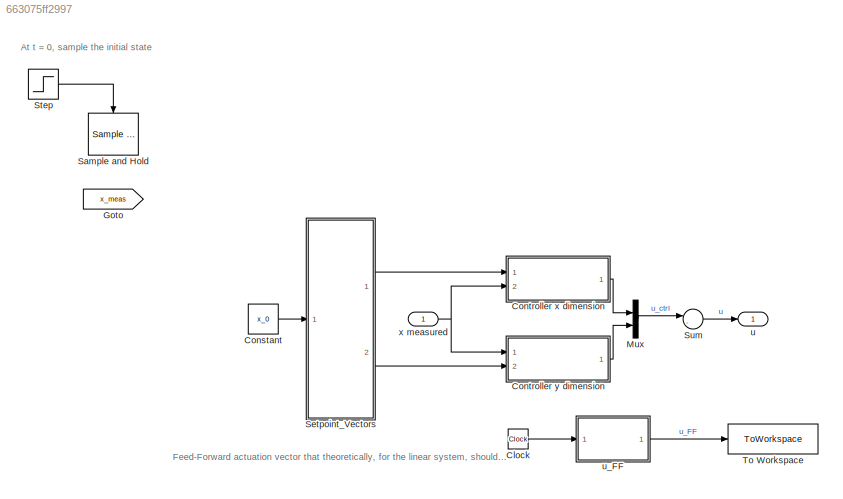
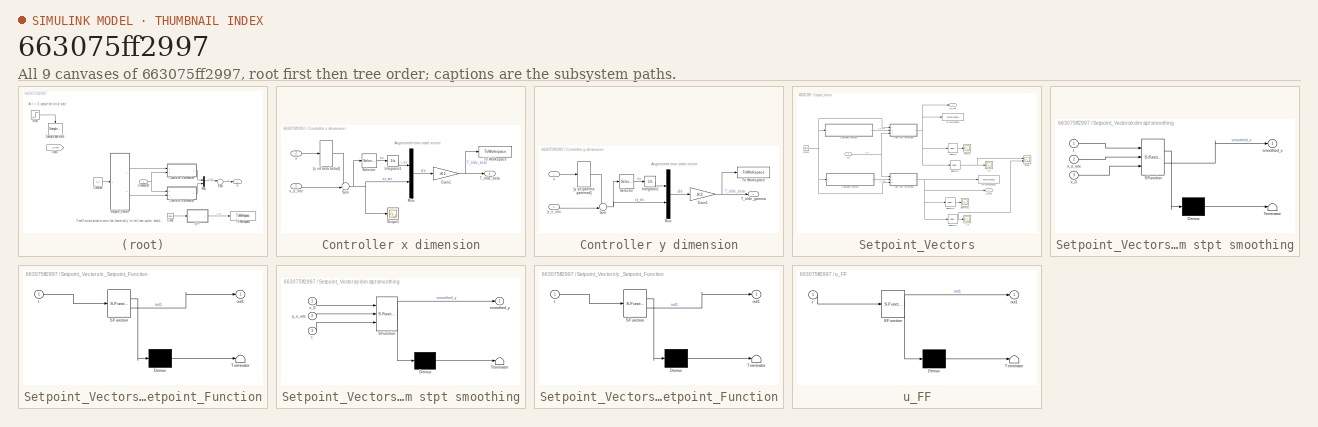
[diagram: thumbnail index - all 9 canvases of the model, root first then tree order]
MODEL slx_663075ff2997
KIND model
CONFIG AbsTol = auto
CONFIG EnableMultiTasking = off
CONFIG FixedStep = auto
CONFIG MaxStep = auto
CONFIG MinStep = auto
CONFIG RelTol = 1e-9
CONFIG SampleTimeConstraint = Unconstrained
CONFIG SolverName = VariableStepAuto
CONFIG StartTime = 0.0
CONFIG StopTime = 18
BLOCK [Clock] Clock
BLOCK [Constant] Constant
  Value = x_0
BLOCK [SubSystem] Controller x dimension
  Ports = [2, 1]
  RequestExecContextInheritance = off
BLOCK [Gain] Controller x dimension/Gain1
  Gain = -K1
  Multiplication = Matrix(K*u)
BLOCK [Integrator] Controller x dimension/Integrator1
  Ports = [1, 1]
BLOCK [Mux] Controller x dimension/Mux
  DisplayOption = bar
  Inputs = 2
  Ports = [2, 1]
BLOCK [Scope] Controller x dimension/Scope1
  Floating = off
  NumInputPorts = 1
  Ports = [1]
  ScopeSpecificationString = Simulink.scopes.TimeScopeBlockCfg('CurrentConfiguration', extmgr.ConfigurationSet(extmgr.Configuration('Core','General UI',true),extmgr.Configuration('Core','Source UI',true),extmgr.Configuration('Sources','WiredSimulink',true,'DataLoggingVariableName','ScopeData3'),extmgr.Configuration('Visuals','Time Domain',true,'SerializedDisplays',{struct('MinYLimReal','-0.17979','MaxYLimReal','0.30301','YLab...<+1451ch>
BLOCK [Selector] Controller x dimension/Selector
  IndexOptions = Index vector (dialog)
  Indices = [1 ]
  InputPortWidth = 4
  OutputSizes = 1
  Ports = [1, 1]
BLOCK [Sum] Controller x dimension/Sum
  Inputs = -+|
  Ports = [2, 1]
BLOCK [Outport] Controller x dimension/T_tilde_beta
BLOCK [ToWorkspace] Controller x dimension/To Workspace
  FixptAsFi = on
  MaxDataPoints = inf
  Ports = [1]
  SampleTime = -1
  VariableName = T_tilde_beta
BLOCK [Selector] Controller x dimension/[x xd beta betad]
  IndexOptions = Index vector (dialog)
  Indices = [1:4]
  InputPortWidth = 8
  OutputSizes = 1
  Ports = [1, 1]
BLOCK [Inport] Controller x dimension/x
  Port = 2
BLOCK [Inport] Controller x dimension/x_s_vec
BLOCK [SubSystem] Controller y dimension
  NameLocation = top
  Ports = [2, 1]
  RequestExecContextInheritance = off
BLOCK [Gain] Controller y dimension/Gain1
  Gain = -K2
  Multiplication = Matrix(K*u)
BLOCK [Integrator] Controller y dimension/Integrator1
  Ports = [1, 1]
BLOCK [Mux] Controller y dimension/Mux
  DisplayOption = bar
  Inputs = 2
  Ports = [2, 1]
BLOCK [Selector] Controller y dimension/Selector
  IndexOptions = Index vector (dialog)
  Indices = [1 ]
  InputPortWidth = 4
  OutputSizes = 1
  Ports = [1, 1]
BLOCK [Sum] Controller y dimension/Sum
  Inputs = -+|
  Ports = [2, 1]
BLOCK [Outport] Controller y dimension/T_tilde_gamma
BLOCK [ToWorkspace] Controller y dimension/To Workspace
  FixptAsFi = on
  MaxDataPoints = inf
  Ports = [1]
  SampleTime = -1
  VariableName = T_tilde_gamma
BLOCK [Selector] Controller y dimension/[y yd gamma gammad]
  IndexOptions = Index vector (dialog)
  Indices = [5:8]
  InputPortWidth = 8
  OutputSizes = 1
  Ports = [1, 1]
BLOCK [Inport] Controller y dimension/x
BLOCK [Inport] Controller y dimension/y_s_vec
  Port = 2
BLOCK [Goto] Goto
  Commented = on
  GotoTag = x_meas
BLOCK [Mux] Mux
  DisplayOption = bar
  Inputs = 2
  Ports = [2, 1]
BLOCK [Reference] Sample and Hold  REF=dspsigops/Sample
and Hold
  Commented = on
  Ports = [1, 1, 0, 1]
  SourceBlock = dspsigops/Sample\nand Hold
  SourceProductBaseCode = DS
  SourceType = Sample and Hold
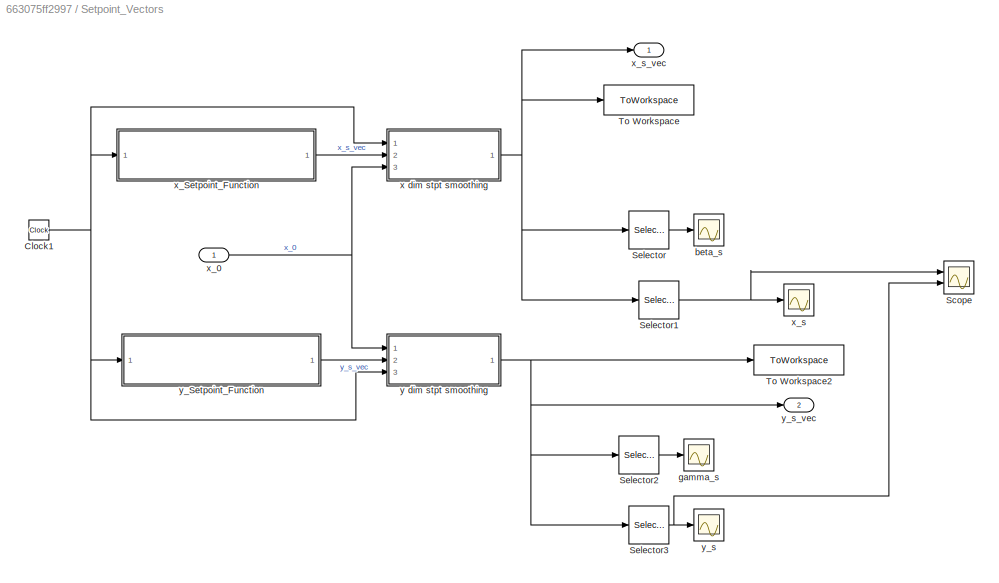
BLOCK [SubSystem] Setpoint_Vectors
  Ports = [1, 2]
  RequestExecContextInheritance = off
BLOCK [Clock] Setpoint_Vectors/Clock1
BLOCK [Scope] Setpoint_Vectors/Scope
  Floating = off
  NumInputPorts = 2
  Ports = [2]
  ScopeSpecificationString = Simulink.scopes.TimeScopeBlockCfg('CurrentConfiguration', extmgr.ConfigurationSet(extmgr.Configuration('Core','General UI',true),extmgr.Configuration('Core','Source UI',true),extmgr.Configuration('Sources','WiredSimulink',true,'DataLoggingVariableName','ScopeData7'),extmgr.Configuration('Visuals','Time Domain',true,'SerializedDisplays',{struct('MinYLimReal','-0.1875','MaxYLimReal','0.1875','YLabel...<+1418ch>
BLOCK [Selector] Setpoint_Vectors/Selector
  IndexOptions = Index vector (dialog)
  Indices = [3]
  InputPortWidth = 4
  OutputSizes = 1
  Ports = [1, 1]
BLOCK [Selector] Setpoint_Vectors/Selector1
  IndexOptions = Index vector (dialog)
  Indices = [1]
  InputPortWidth = 4
  OutputSizes = 1
  Ports = [1, 1]
BLOCK [Selector] Setpoint_Vectors/Selector2
  IndexOptions = Index vector (dialog)
  Indices = [3]
  InputPortWidth = 4
  OutputSizes = 1
  Ports = [1, 1]
BLOCK [Selector] Setpoint_Vectors/Selector3
  IndexOptions = Index vector (dialog)
  Indices = [1]
  InputPortWidth = 4
  OutputSizes = 1
  Ports = [1, 1]
BLOCK [ToWorkspace] Setpoint_Vectors/To Workspace
  FixptAsFi = on
  MaxDataPoints = inf
  Ports = [1]
  SampleTime = -1
  VariableName = x_s_vec
BLOCK [ToWorkspace] Setpoint_Vectors/To Workspace2
  FixptAsFi = on
  MaxDataPoints = inf
  Ports = [1]
  SampleTime = -1
  VariableName = y_s_vec
BLOCK [Scope] Setpoint_Vectors/beta_s
  Floating = off
  NumInputPorts = 1
  Ports = [1]
  ScopeSpecificationString = Simulink.scopes.TimeScopeBlockCfg('CurrentConfiguration', extmgr.ConfigurationSet(extmgr.Configuration('Core','General UI',true),extmgr.Configuration('Core','Source UI',true),extmgr.Configuration('Sources','WiredSimulink',true,'DataLoggingVariableName','ScopeData2'),extmgr.Configuration('Visuals','Time Domain',true,'SerializedDisplays',{struct('MinYLimReal','-1.15265','MaxYLimReal','0.83023','YLab...<+1441ch>
BLOCK [Scope] Setpoint_Vectors/gamma_s
  Floating = off
  NumInputPorts = 1
  Ports = [1]
  ScopeSpecificationString = Simulink.scopes.TimeScopeBlockCfg('CurrentConfiguration', extmgr.ConfigurationSet(extmgr.Configuration('Core','General UI',true),extmgr.Configuration('Core','Source UI',true),extmgr.Configuration('Sources','WiredSimulink',true,'DataLoggingVariableName','ScopeData5'),extmgr.Configuration('Visuals','Time Domain',true,'SerializedDisplays',{struct('MinYLimReal','-0.02268','MaxYLimReal','0.01988','YLab...<+1423ch>
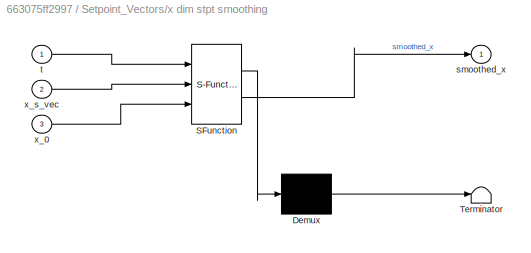
BLOCK [SubSystem] Setpoint_Vectors/x dim stpt smoothing
  ErrorFcn = Stateflow.Translate.translate
  PermitHierarchicalResolution = ExplicitOnly
  Ports = [3, 1]
  RequestExecContextInheritance = off
  SFBlockType = MATLAB Function
  TreatAsAtomicUnit = on
BLOCK [Demux] Setpoint_Vectors/x dim stpt smoothing/ Demux 
  Outputs = 1
  Ports = [1, 1]
BLOCK [S-Function] Setpoint_Vectors/x dim stpt smoothing/ SFunction 
  EnableBusSupport = on
  FunctionName = sf_sfun
  Parameters = Tau
  PortCounts = [3 2]
  Ports = [3, 2]
  SFcnIsStateOwnerBlock = off
  SFunctionDeploymentMode = off
  Tag = Stateflow S-Function 6
BLOCK [Terminator] Setpoint_Vectors/x dim stpt smoothing/ Terminator 
BLOCK [Outport] Setpoint_Vectors/x dim stpt smoothing/smoothed_x
BLOCK [Inport] Setpoint_Vectors/x dim stpt smoothing/t
BLOCK [Inport] Setpoint_Vectors/x dim stpt smoothing/x_0
  Port = 3
BLOCK [Inport] Setpoint_Vectors/x dim stpt smoothing/x_s_vec
  Port = 2
BLOCK [Inport] Setpoint_Vectors/x_0
BLOCK [SubSystem] Setpoint_Vectors/x_Setpoint_Function
  ErrorFcn = Stateflow.Translate.translate
  PermitHierarchicalResolution = ExplicitOnly
  Ports = [1, 1]
  RequestExecContextInheritance = off
  SFBlockType = MATLAB Function
  TreatAsAtomicUnit = on
BLOCK [Demux] Setpoint_Vectors/x_Setpoint_Function/ Demux 
  Outputs = 1
  Ports = [1, 1]
BLOCK [S-Function] Setpoint_Vectors/x_Setpoint_Function/ SFunction 
  EnableBusSupport = on
  FunctionName = sf_sfun
  PortCounts = [1 2]
  Ports = [1, 2]
  SFcnIsStateOwnerBlock = off
  SFunctionDeploymentMode = off
  Tag = Stateflow S-Function 2
BLOCK [Terminator] Setpoint_Vectors/x_Setpoint_Function/ Terminator 
BLOCK [Outport] Setpoint_Vectors/x_Setpoint_Function/out1
BLOCK [Inport] Setpoint_Vectors/x_Setpoint_Function/t
BLOCK [Scope] Setpoint_Vectors/x_s
  Floating = off
  NumInputPorts = 1
  Ports = [1]
  ScopeSpecificationString = Simulink.scopes.TimeScopeBlockCfg('CurrentConfiguration', extmgr.ConfigurationSet(extmgr.Configuration('Core','General UI',true),extmgr.Configuration('Core','Source UI',true),extmgr.Configuration('Sources','WiredSimulink',true,'DataLoggingVariableName','ScopeData4'),extmgr.Configuration('Visuals','Time Domain',true,'SerializedDisplays',{struct('MinYLimReal','-0.3747','MaxYLimReal','0.37478','YLabe...<+1420ch>
BLOCK [Outport] Setpoint_Vectors/x_s_vec
BLOCK [SubSystem] Setpoint_Vectors/y dim stpt smoothing
  ErrorFcn = Stateflow.Translate.translate
  PermitHierarchicalResolution = ExplicitOnly
  Ports = [3, 1]
  RequestExecContextInheritance = off
  SFBlockType = MATLAB Function
  TreatAsAtomicUnit = on
BLOCK [Demux] Setpoint_Vectors/y dim stpt smoothing/ Demux 
  Outputs = 1
  Ports = [1, 1]
BLOCK [S-Function] Setpoint_Vectors/y dim stpt smoothing/ SFunction 
  EnableBusSupport = on
  FunctionName = sf_sfun
  Parameters = Tau
  PortCounts = [3 2]
  Ports = [3, 2]
  SFcnIsStateOwnerBlock = off
  SFunctionDeploymentMode = off
  Tag = Stateflow S-Function 1
BLOCK [Terminator] Setpoint_Vectors/y dim stpt smoothing/ Terminator 
BLOCK [Outport] Setpoint_Vectors/y dim stpt smoothing/smoothed_y
BLOCK [Inport] Setpoint_Vectors/y dim stpt smoothing/t
  Port = 3
BLOCK [Inport] Setpoint_Vectors/y dim stpt smoothing/x_0
BLOCK [Inport] Setpoint_Vectors/y dim stpt smoothing/y_s_vec
  Port = 2
BLOCK [SubSystem] Setpoint_Vectors/y_Setpoint_Function
  ErrorFcn = Stateflow.Translate.translate
  PermitHierarchicalResolution = ExplicitOnly
  Ports = [1, 1]
  RequestExecContextInheritance = off
  SFBlockType = MATLAB Function
  TreatAsAtomicUnit = on
BLOCK [Demux] Setpoint_Vectors/y_Setpoint_Function/ Demux 
  Outputs = 1
  Ports = [1, 1]
BLOCK [S-Function] Setpoint_Vectors/y_Setpoint_Function/ SFunction 
  EnableBusSupport = on
  FunctionName = sf_sfun
  PortCounts = [1 2]
  Ports = [1, 2]
  SFcnIsStateOwnerBlock = off
  SFunctionDeploymentMode = off
  Tag = Stateflow S-Function 3
BLOCK [Terminator] Setpoint_Vectors/y_Setpoint_Function/ Terminator 
BLOCK [Outport] Setpoint_Vectors/y_Setpoint_Function/out1
BLOCK [Inport] Setpoint_Vectors/y_Setpoint_Function/t
BLOCK [Scope] Setpoint_Vectors/y_s
  Floating = off
  NumInputPorts = 1
  Ports = [1]
  ScopeSpecificationString = Simulink.scopes.TimeScopeBlockCfg('CurrentConfiguration', extmgr.ConfigurationSet(extmgr.Configuration('Core','General UI',true),extmgr.Configuration('Core','Source UI',true),extmgr.Configuration('Sources','WiredSimulink',true,'DataLoggingVariableName','ScopeData6'),extmgr.Configuration('Visuals','Time Domain',true,'SerializedDisplays',{struct('MinYLimReal','-0.0625','MaxYLimReal','0.0625','YLabel...<+1417ch>
BLOCK [Outport] Setpoint_Vectors/y_s_vec
  Port = 2
BLOCK [Step] Step
  Commented = on
  SampleTime = 0
  Time = 0
BLOCK [Sum] Sum
  Inputs = |-+
  Ports = [2, 1]
BLOCK [ToWorkspace] To Workspace
  FixptAsFi = on
  MaxDataPoints = inf
  Ports = [1]
  SampleTime = -1
  VariableName = u_FF
BLOCK [Outport] u
BLOCK [SubSystem] u_FF
  ErrorFcn = Stateflow.Translate.translate
  PermitHierarchicalResolution = ExplicitOnly
  Ports = [1, 1]
  RequestExecContextInheritance = off
  SFBlockType = MATLAB Function
  TreatAsAtomicUnit = on
BLOCK [Demux] u_FF/ Demux 
  Outputs = 1
  Ports = [1, 1]
BLOCK [S-Function] u_FF/ SFunction 
  EnableBusSupport = on
  FunctionName = sf_sfun
  PortCounts = [1 2]
  Ports = [1, 2]
  SFcnIsStateOwnerBlock = off
  SFunctionDeploymentMode = off
  Tag = Stateflow S-Function 5
BLOCK [Terminator] u_FF/ Terminator 
BLOCK [Outport] u_FF/out1
BLOCK [Inport] u_FF/t
BLOCK [Inport] x measured
ANNOTATION (root): At t = 0, sample the initial state
ANNOTATION (root): Feed-Forward actuation vector that theoretically, for the linear system, should keep the system on the setpoint if it's there already.
ANNOTATION Controller x dimension: Augmented error state vector
ANNOTATION Controller y dimension: Augmented error state vector
LINE Clock:1 -> u_FF:1
LINE Constant:1 -> Setpoint_Vectors:1
NET Controller x dimension/Gain1:1 -> Controller x dimension/T_tilde_beta:1, Controller x dimension/To Workspace:1
LINE Controller x dimension/Integrator1:1 -> Controller x dimension/Mux:1
LINE Controller x dimension/Mux:1 -> Controller x dimension/Gain1:1
LINE Controller x dimension/Selector:1 -> Controller x dimension/Integrator1:1
NET Controller x dimension/Sum:1 -> Controller x dimension/Mux:2, Controller x dimension/Scope1:1, Controller x dimension/Selector:1
LINE Controller x dimension/[x xd beta betad]:1 -> Controller x dimension/Sum:1
LINE Controller x dimension/x:1 -> Controller x dimension/[x xd beta betad]:1
LINE Controller x dimension/x_s_vec:1 -> Controller x dimension/Sum:2
LINE Controller x dimension:1 -> Mux:1
NET Controller y dimension/Gain1:1 -> Controller y dimension/T_tilde_gamma:1, Controller y dimension/To Workspace:1
LINE Controller y dimension/Integrator1:1 -> Controller y dimension/Mux:1
LINE Controller y dimension/Mux:1 -> Controller y dimension/Gain1:1
LINE Controller y dimension/Selector:1 -> Controller y dimension/Integrator1:1
NET Controller y dimension/Sum:1 -> Controller y dimension/Mux:2, Controller y dimension/Selector:1
LINE Controller y dimension/[y yd gamma gammad]:1 -> Controller y dimension/Sum:1
LINE Controller y dimension/x:1 -> Controller y dimension/[y yd gamma gammad]:1
LINE Controller y dimension/y_s_vec:1 -> Controller y dimension/Sum:2
LINE Controller y dimension:1 -> Mux:2
LINE Mux:1 -> Sum:1
NET Setpoint_Vectors/Clock1:1 -> Setpoint_Vectors/x dim stpt smoothing:1, Setpoint_Vectors/x_Setpoint_Function:1, Setpoint_Vectors/y dim stpt smoothing:3, Setpoint_Vectors/y_Setpoint_Function:1
NET Setpoint_Vectors/Selector1:1 -> Setpoint_Vectors/Scope:1, Setpoint_Vectors/x_s:1
LINE Setpoint_Vectors/Selector2:1 -> Setpoint_Vectors/gamma_s:1
NET Setpoint_Vectors/Selector3:1 -> Setpoint_Vectors/Scope:2, Setpoint_Vectors/y_s:1
LINE Setpoint_Vectors/Selector:1 -> Setpoint_Vectors/beta_s:1
NET Setpoint_Vectors/x dim stpt smoothing:1 -> Setpoint_Vectors/Selector1:1, Setpoint_Vectors/Selector:1, Setpoint_Vectors/To Workspace:1, Setpoint_Vectors/x_s_vec:1
NET Setpoint_Vectors/x_0:1 -> Setpoint_Vectors/x dim stpt smoothing:3, Setpoint_Vectors/y dim stpt smoothing:1
LINE Setpoint_Vectors/x_Setpoint_Function:1 -> Setpoint_Vectors/x dim stpt smoothing:2
NET Setpoint_Vectors/y dim stpt smoothing:1 -> Setpoint_Vectors/Selector2:1, Setpoint_Vectors/Selector3:1, Setpoint_Vectors/To Workspace2:1, Setpoint_Vectors/y_s_vec:1
LINE Setpoint_Vectors/y_Setpoint_Function:1 -> Setpoint_Vectors/y dim stpt smoothing:2
LINE Setpoint_Vectors:1 -> Controller x dimension:1
LINE Setpoint_Vectors:2 -> Controller y dimension:2
LINE Step:1 -> Sample and Hold:trigger
LINE Sum:1 -> u:1
LINE u_FF:1 -> To Workspace:1
NET x measured:1 -> Controller x dimension:2, Controller y dimension:1
note: NET lines group one-source signal fan-out (src -> all destinations, sorted); 1:1 wires keep LINE
CHART Setpoint_Vectors/y dim stpt smoothing states=1 transitions=1
  STATE_LABEL 'eML_blk_kernel()'
  STATE_LABEL 'SCRIPT:\nfunction smoothed_y = fcn(x_0,y_s_vec,t, Tau)\n\nsmoothed_y = y_s_vec*(1-exp(-t/Tau)) + x_0(5:end)*exp(-t/Tau);\n'
CHART Setpoint_Vectors/x_Setpoint_Function states=1 transitions=1
  STATE_LABEL 'eML_blk_kernel()'
  STATE_LABEL 'SCRIPT:\nfunction out1 = x_s_vec(t)\n%#codegen\n\n%    This function was generated by the Symbolic Math Toolbox version 9.1.\n%    10-May-2023 20:20:16\n\nt2 = pi.^2;\nt3 = t.*pi.*2.0;\nt4 = t.*pi.*(2.0./3.0);\nt5 = cos(t4);\nt6 = sin(t4);\nt7 = t2.*1.298e+3;\nt8 = t7+2.4525e+4;\nt9 = t8+1.962e+5;\nt10 = 1.0./t8;\nt11 = 1.0./t9;\nt12 = t10.*1.983917565485362e+4;\nt13 = t11.*1.785525808936826e+5;\nt14 = t12-5.25e+2./...<+235ch>'
CHART Setpoint_Vectors/y_Setpoint_Function states=1 transitions=1
  STATE_LABEL 'eML_blk_kernel()'
  STATE_LABEL 'SCRIPT:\nfunction out1 = y_s_vec(t)\n%#codegen\n\n%    This function was generated by the Symbolic Math Toolbox version 9.1.\n%    10-May-2023 20:20:16\n\nt2 = pi.^2;\nt3 = pi.^3;\nt5 = t.*pi.*2.0;\nt6 = t.*pi.*(2.0./3.0);\nt7 = t.*pi.*(4.0./3.0);\nt4 = t2.^2;\nt8 = cos(t6);\nt9 = cos(t7);\nt10 = sin(t6);\nt11 = sin(t7);\nt13 = t2.*3.183345e+8;\nt12 = t4.*1.684804e+6;\nt14 = t9.*2.20725e+5;\nt15 = t2.*t9.*1.298e+3;\nt...<+294ch>'
CHART u_FF states=1 transitions=1
  STATE_LABEL 'eML_blk_kernel()'
  STATE_LABEL 'SCRIPT:\nfunction out1 = u_FF(t)\n%#codegen\n\n%    This function was generated by the Symbolic Math Toolbox version 9.1.\n%    10-May-2023 20:20:16\n\nt2 = pi.^2;\nt5 = t.*pi.*(2.0./3.0);\nt6 = t.*pi.*(4.0./3.0);\nt3 = t2.^2;\nt4 = t2.^3;\nt7 = cos(t5);\nt8 = cos(t6);\nt9 = sin(t5);\nt10 = t2.*1.298e+3;\nt13 = t2.*3.183345e+8;\nt11 = t7.^3;\nt12 = t3.*1.684804e+6;\nt14 = t10+2.4525e+4;\nt15 = t14+1.962e+5;\nt16 = 1.0...<+731ch>'
CHART Setpoint_Vectors/x dim stpt smoothing states=1 transitions=1
  STATE_LABEL 'eML_blk_kernel()'
  STATE_LABEL 'SCRIPT:\nfunction smoothed_x = fcn(t,x_s_vec, Tau, x_0)\n\nsmoothed_x = x_s_vec*(1-exp(-t/Tau)) + x_0(1:4)*exp(-t/Tau);\n'
CHART  states=0 transitions=0
CHART  states=0 transitions=0
CHART  states=0 transitions=0
CHART  states=0 transitions=0
CHART  states=0 transitions=0
